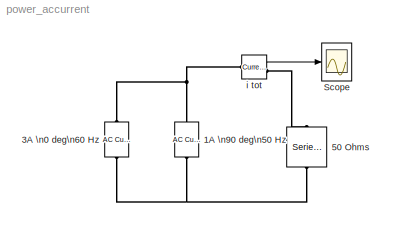
MODEL power_accurrent
KIND model
BLOCK [Reference] 1A \n90 deg\n50 Hz  REF=powerlib/Electrical\nSources/AC Current Source
  Amplitude = 1
  AttributesFormatString = \\n
  Frequency = 50
  Measurements = None
  Phase = 90
  Ports = [0, 0, 0, 0, 0, 1, 1]
  SampleTime = 0
  SourceBlock = powerlib/Electrical\nSources/AC Current Source
  SourceType = AC Current Source
BLOCK [Reference] 3A \n0 deg\n60 Hz  REF=powerlib/Electrical\nSources/AC Current Source
  Amplitude = 3
  AttributesFormatString = \\n
  Frequency = 60
  Measurements = None
  Phase = 0
  Ports = [0, 0, 0, 0, 0, 1, 1]
  SampleTime = 0
  SourceBlock = powerlib/Electrical\nSources/AC Current Source
  SourceType = AC Current Source
BLOCK [Reference] 50 Ohms   REF=powerlib/Elements/Series RLC Branch
  AttributesFormatString = \\n
  Capacitance = inf
  Inductance = 0
  LConnTagsString = __new0
  Measurements = None
  PhysicalDomain = powersysdomain
  PortType = p1
  Ports = [0, 0, 0, 0, 0, 1, 1]
  RConnTagsString = __new0
  Resistance = 50
  SourceBlock = powerlib/Elements/Series RLC Branch
  SourceType = Series RLC Branch
  SubClassName = unknown
BLOCK [Scope] Scope
  DataFormat = Array
  NumInputPorts = 1
  Ports = [1]
  TickLabels = on
  TimeRange = 0.5
BLOCK [Reference] i tot  REF=powerlib/Measurements/Current Measurement
  AttributesFormatString = \\n
  OutputType = Magnitude
  PSBequivalent = 0
  PhasorSimulation = off
  Ports = [0, 1, 0, 0, 0, 1, 1]
  SourceBlock = powerlib/Measurements/Current Measurement
  SourceType = Current Measurement
  Tag = PoWeRsYsTeMmEaSuReMeNt
LINE i tot:1 -> Scope:1
PNET net1: 1A \n90 deg\n50 Hz:LConn1 -- 3A \n0 deg\n60 Hz:LConn1 -- 50 Ohms :RConn1
PNET net2: 1A \n90 deg\n50 Hz:RConn1 -- 3A \n0 deg\n60 Hz:RConn1 -- i tot:LConn1
PLINE 50 Ohms :LConn1 -- i tot:RConn1
note: PNET lines group multi-terminal physical nets as a canonical sorted terminal list (undirected conserving connections); 2-terminal nets keep the pairwise PLINE form
